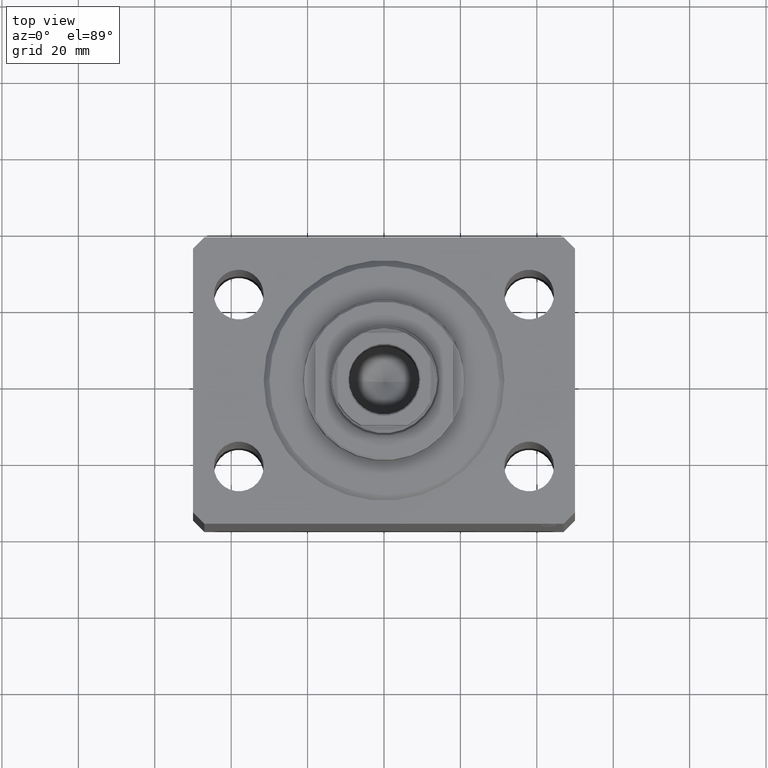
[diagram: clean part render]
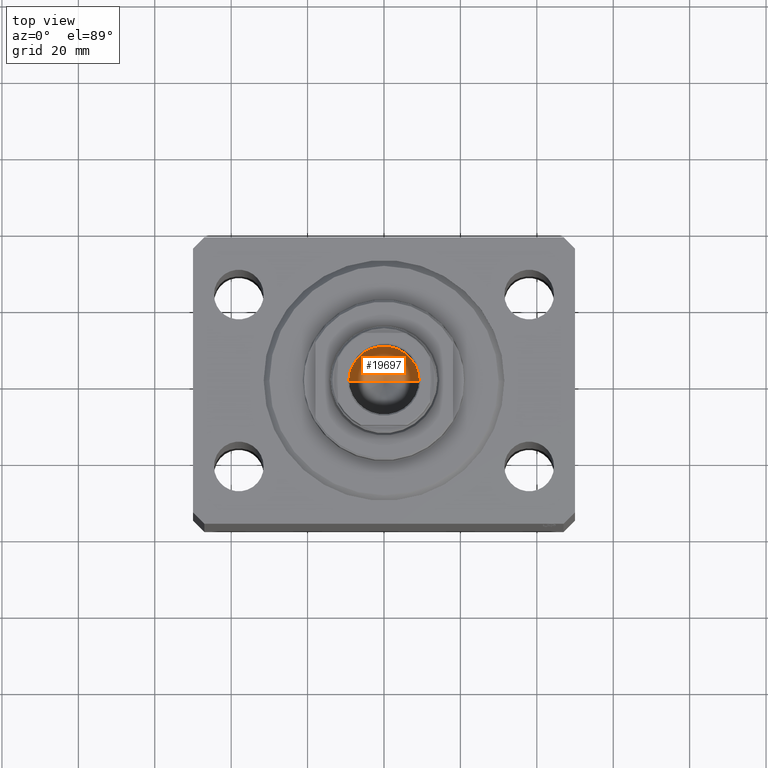
[diagram: same view with one face highlighted and labeled with its STEP entity id]
A machine part, top view. The second image highlights one B-rep face of the part: STEP entity #19697.
In plain terms, the highlighted conical surface has half-angle 59 deg.
Its self-contained STEP definition (entity closure, byte-faithful):
#3524 = CARTESIAN_POINT ( 'NONE',  ( 0.000000000000000000, 0.000000000000000000, 98.09999999999999432 ) ) ;
#6059 = DIRECTION ( 'NONE',  ( 1.000000000000000000, 0.000000000000000000, 0.000000000000000000 ) ) ;
#8483 = CONICAL_SURFACE ( 'NONE', #15703, 9.249999999999994671, 1.029744258676653423 ) ;
#9447 = CARTESIAN_POINT ( 'NONE',  ( 0.000000000000000000, 0.000000000000000000, 98.09999999999999432 ) ) ;
#12296 = DIRECTION ( 'NONE',  ( -0.8571673007021117785, 1.049727191138617956E-16, 0.5150380749100550437 ) ) ;
#13990 = EDGE_CURVE ( 'NONE', #28290, #20126, #42579, .T. ) ;
#14854 = CARTESIAN_POINT ( 'NONE',  ( 9.249999999999994671, 0.000000000000000000, 98.09999999999999432 ) ) ;
#15703 = AXIS2_PLACEMENT_3D ( 'NONE', #9447, #33569, #6059 ) ;
#18012 = VECTOR ( 'NONE', #12296, 1000.000000000000000 ) ;
#19697 = ADVANCED_FACE ( 'NONE', ( #19835 ), #8483, .F. ) ;
#19835 = FACE_OUTER_BOUND ( 'NONE', #32061, .T. ) ;
#20126 = VERTEX_POINT ( 'NONE', #38940 ) ;
#23002 = EDGE_CURVE ( 'NONE', #20126, #31658, #37342, .T. ) ;
#24850 = ORIENTED_EDGE ( 'NONE', *, *, #23002, .T. ) ;
#25152 = CARTESIAN_POINT ( 'NONE',  ( -9.249999999999994671, 1.132798289211300909E-15, 98.09999999999999432 ) ) ;
#27781 = CARTESIAN_POINT ( 'NONE',  ( -1.046994375366439223E-14, 0.000000000000000000, 92.54203927399505858 ) ) ;
#28269 = CARTESIAN_POINT ( 'NONE',  ( -9.249999999999994671, 1.132798289211300909E-15, 98.09999999999999432 ) ) ;
#28290 = VERTEX_POINT ( 'NONE', #27781 ) ;
#28492 = VECTOR ( 'NONE', #31326, 1000.000000000000000 ) ;
#28542 = LINE ( 'NONE', #25152, #18012 ) ;
#29324 = ORIENTED_EDGE ( 'NONE', *, *, #34040, .F. ) ;
#31326 = DIRECTION ( 'NONE',  ( 0.8571673007021117785, 0.000000000000000000, 0.5150380749100550437 ) ) ;
#31658 = VERTEX_POINT ( 'NONE', #28269 ) ;
#32061 = EDGE_LOOP ( 'NONE', ( #29324, #44506, #24850 ) ) ;
#33569 = DIRECTION ( 'NONE',  ( -0.000000000000000000, -0.000000000000000000, 1.000000000000000000 ) ) ;
#34040 = EDGE_CURVE ( 'NONE', #28290, #31658, #28542, .T. ) ;
#36909 = DIRECTION ( 'NONE',  ( 1.000000000000000000, 0.000000000000000000, 0.000000000000000000 ) ) ;
#37138 = DIRECTION ( 'NONE',  ( -0.000000000000000000, -0.000000000000000000, 1.000000000000000000 ) ) ;
#37342 = CIRCLE ( 'NONE', #44543, 9.249999999999994671 ) ;
#38940 = CARTESIAN_POINT ( 'NONE',  ( 9.249999999999994671, 0.000000000000000000, 98.09999999999999432 ) ) ;
#42579 = LINE ( 'NONE', #14854, #28492 ) ;
#44506 = ORIENTED_EDGE ( 'NONE', *, *, #13990, .T. ) ;
#44543 = AXIS2_PLACEMENT_3D ( 'NONE', #3524, #37138, #36909 ) ;